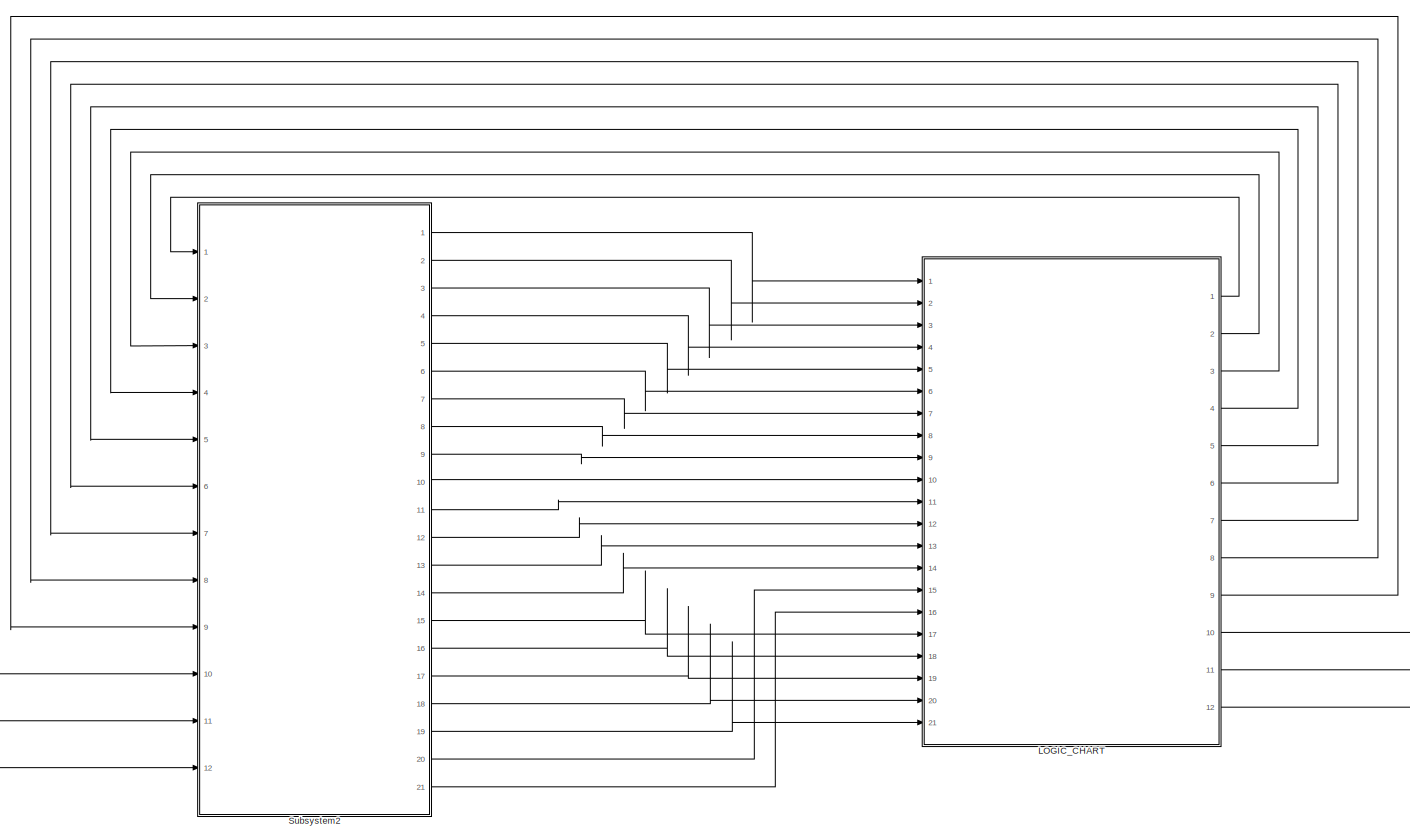
[diagram: root canvas - part 1/1, most of the canvas]
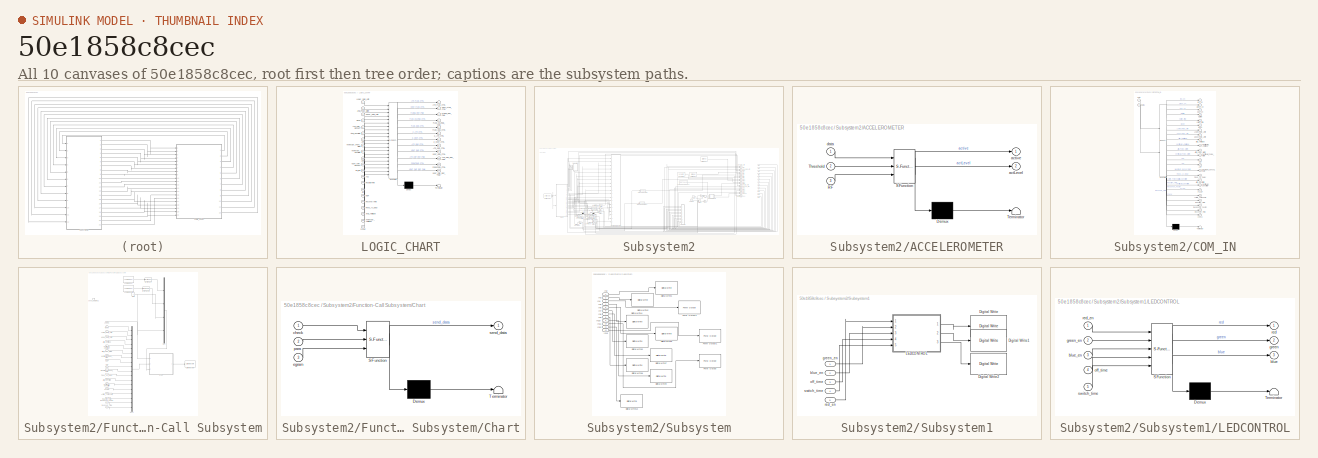
[diagram: thumbnail index - all 10 canvases of the model, root first then tree order]
MODEL slx_50e1858c8cec
KIND model
CONFIG AbsTol = auto
CONFIG EnableMultiTasking = on
CONFIG FixedStep = 1E-3
CONFIG MaxStep = auto
CONFIG MinStep = auto
CONFIG RelTol = 1e-3
CONFIG SampleTimeConstraint = Unconstrained
CONFIG Solver = FixedStepAuto
CONFIG SolverName = FixedStepAuto
CONFIG StartTime = 0.0
CONFIG StopTime = 1.0
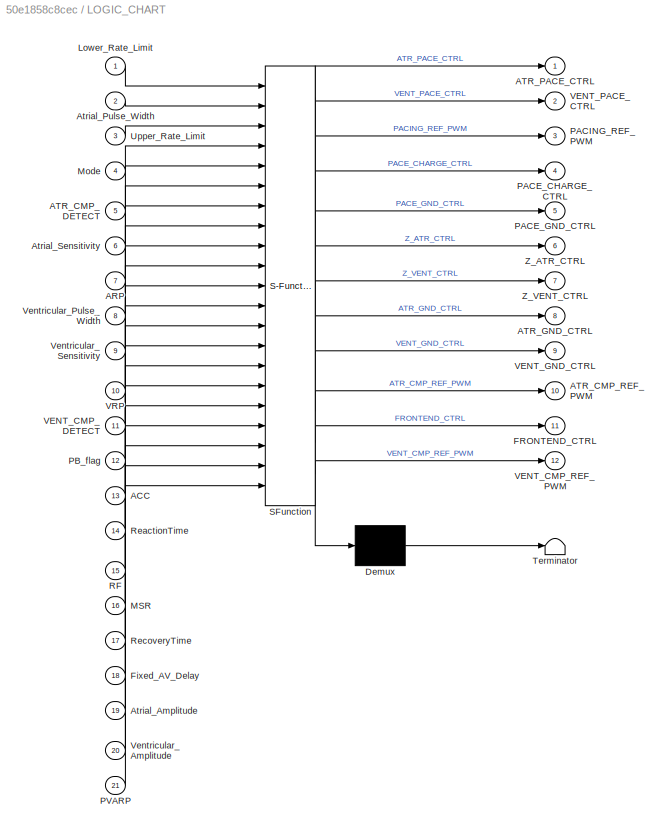
BLOCK [SubSystem] LOGIC_CHART
  ErrorFcn = Stateflow.Translate.translate
  PermitHierarchicalResolution = ExplicitOnly
  PortSchema = {"entries":[{"content":{"sides":[{"content":{"connectorIds":["In1","In2","In3","In4","In5","In6","In7","In8","In9","In10","In11","In12","In13","In14","In17","In18","In19","In20","In21","In15","In16"]},"type":"ConnectorPlacement.EquallySpacedRectSide","uuid":"2532a15d-7e3f-497c-8f71-038aa275bfb3"},{"content":{"connectorIds":["Out1","Out2","Out3","Out4","Out5","Out6","Out7","Out8","Out9","Out10","Ou...<+454ch>
  Ports = [21, 12]
  RequestExecContextInheritance = off
  SFBlockType = Chart
  TreatAsAtomicUnit = on
BLOCK [Demux] LOGIC_CHART/ Demux 
  Outputs = 1
  Ports = [1, 1]
BLOCK [S-Function] LOGIC_CHART/ SFunction 
  EnableBusSupport = on
  FunctionName = sf_sfun
  PortCounts = [21 13]
  Ports = [21, 13]
  SFcnIsStateOwnerBlock = off
  SFunctionDeploymentMode = off
  Tag = Stateflow S-Function 3
BLOCK [Terminator] LOGIC_CHART/ Terminator 
BLOCK [Inport] LOGIC_CHART/ACC
  Port = 13
BLOCK [Inport] LOGIC_CHART/ARP
  Port = 7
BLOCK [Inport] LOGIC_CHART/ATR_CMP_DETECT
  Port = 5
BLOCK [Outport] LOGIC_CHART/ATR_CMP_REF_PWM
  Port = 10
BLOCK [Outport] LOGIC_CHART/ATR_GND_CTRL
  Port = 8
BLOCK [Outport] LOGIC_CHART/ATR_PACE_CTRL
BLOCK [Inport] LOGIC_CHART/Atrial_Amplitude
  Port = 19
BLOCK [Inport] LOGIC_CHART/Atrial_Pulse_Width
  Port = 2
BLOCK [Inport] LOGIC_CHART/Atrial_Sensitivity
  Port = 6
BLOCK [Outport] LOGIC_CHART/FRONTEND_CTRL
  Port = 11
BLOCK [Inport] LOGIC_CHART/Fixed_AV_Delay
  Port = 18
BLOCK [Inport] LOGIC_CHART/Lower_Rate_Limit
BLOCK [Inport] LOGIC_CHART/MSR
  Port = 16
BLOCK [Inport] LOGIC_CHART/Mode
  Port = 4
BLOCK [Outport] LOGIC_CHART/PACE_CHARGE_CTRL
  Port = 4
BLOCK [Outport] LOGIC_CHART/PACE_GND_CTRL
  Port = 5
BLOCK [Outport] LOGIC_CHART/PACING_REF_PWM
  Port = 3
BLOCK [Inport] LOGIC_CHART/PB_flag
  Port = 12
BLOCK [Inport] LOGIC_CHART/PVARP
  Port = 21
BLOCK [Inport] LOGIC_CHART/RF
  Port = 15
BLOCK [Inport] LOGIC_CHART/ReactionTime
  Port = 14
BLOCK [Inport] LOGIC_CHART/RecoveryTime
  Port = 17
BLOCK [Inport] LOGIC_CHART/Upper_Rate_Limit
  Port = 3
BLOCK [Inport] LOGIC_CHART/VENT_CMP_DETECT
  Port = 11
BLOCK [Outport] LOGIC_CHART/VENT_CMP_REF_PWM
  Port = 12
BLOCK [Outport] LOGIC_CHART/VENT_GND_CTRL
  Port = 9
BLOCK [Outport] LOGIC_CHART/VENT_PACE_CTRL
  Port = 2
BLOCK [Inport] LOGIC_CHART/VRP
  Port = 10
BLOCK [Inport] LOGIC_CHART/Ventricular_Amplitude
  Port = 20
BLOCK [Inport] LOGIC_CHART/Ventricular_Pulse_Width
  Port = 8
BLOCK [Inport] LOGIC_CHART/Ventricular_Sensitivity
  Port = 9
BLOCK [Outport] LOGIC_CHART/Z_ATR_CTRL
  Port = 6
BLOCK [Outport] LOGIC_CHART/Z_VENT_CTRL
  Port = 7
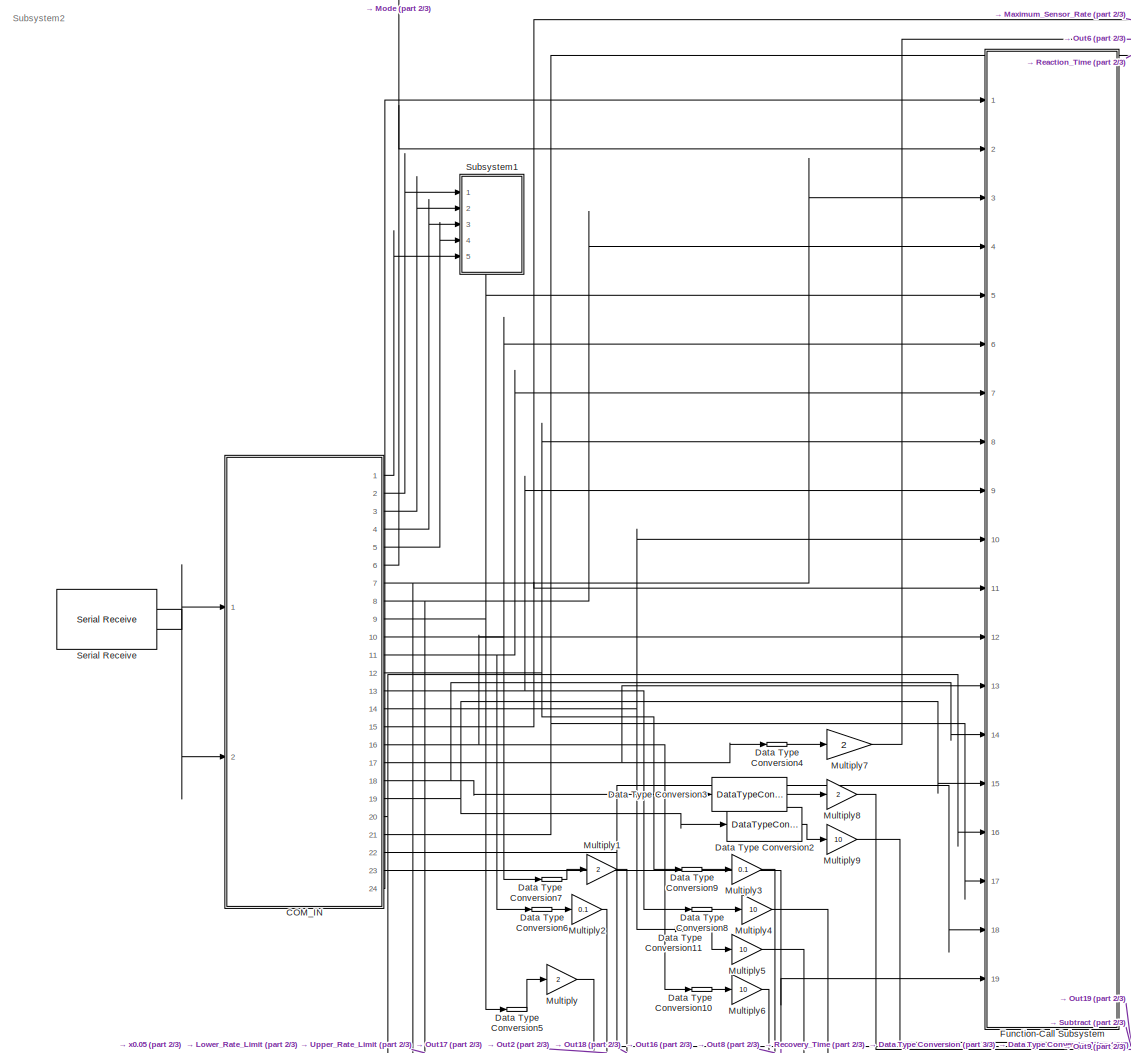
[diagram: Subsystem2 - part 1/3, left side, full height]
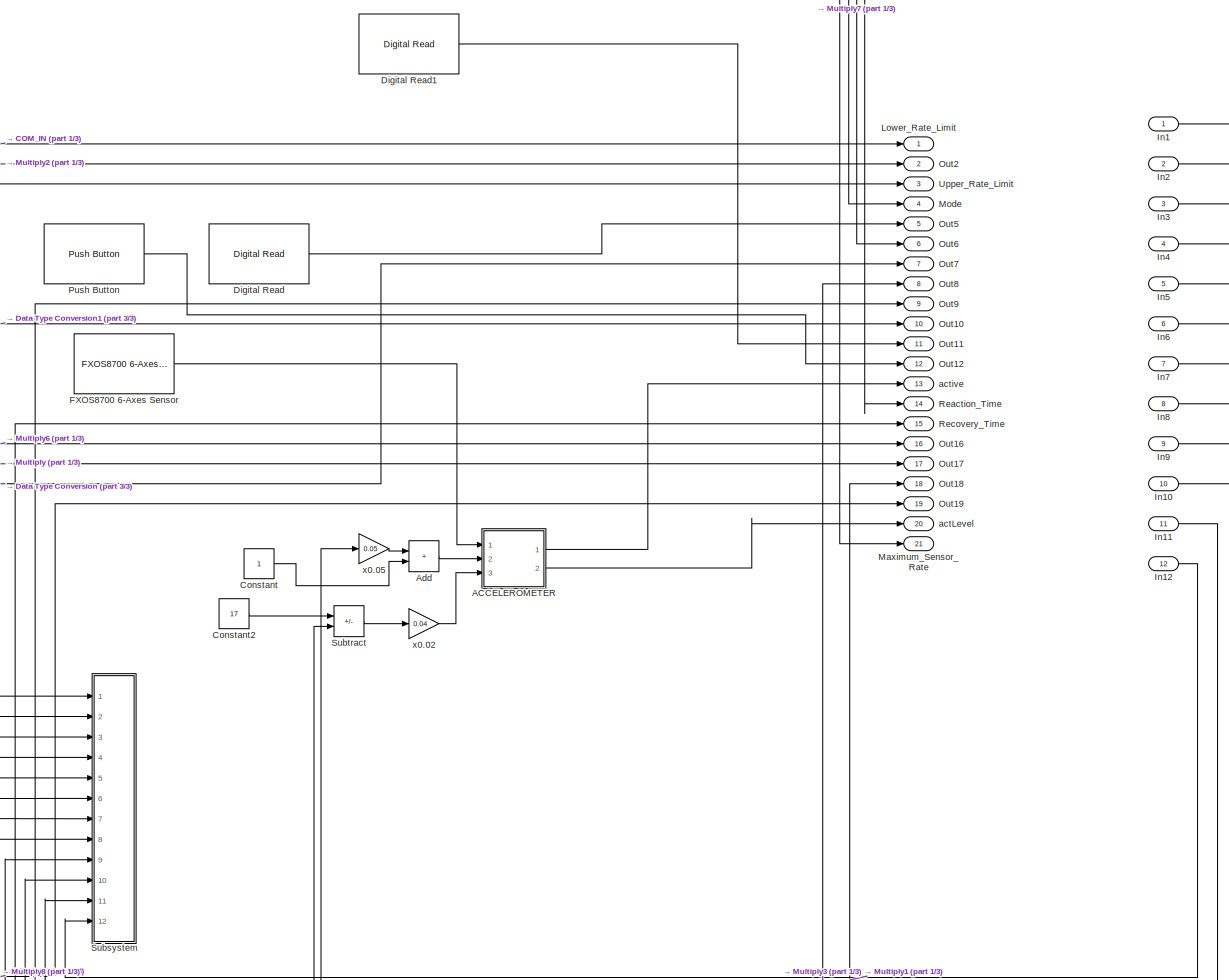
[diagram: Subsystem2 - part 2/3, right side, full height]
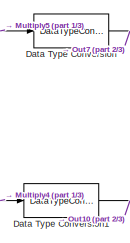
[diagram: Subsystem2 - part 3/3, central region]
BLOCK [SubSystem] Subsystem2
  Ports = [12, 21]
  RequestExecContextInheritance = off
BLOCK [SubSystem] Subsystem2/ACCELEROMETER
  ErrorFcn = Stateflow.Translate.translate
  PermitHierarchicalResolution = ExplicitOnly
  Ports = [3, 2]
  RequestExecContextInheritance = off
  SFBlockType = Chart
  TreatAsAtomicUnit = on
BLOCK [Demux] Subsystem2/ACCELEROMETER/ Demux 
  Outputs = 1
  Ports = [1, 1]
BLOCK [S-Function] Subsystem2/ACCELEROMETER/ SFunction 
  EnableBusSupport = on
  FunctionName = sf_sfun
  PortCounts = [3 3]
  Ports = [3, 3]
  SFcnIsStateOwnerBlock = off
  SFunctionDeploymentMode = off
  Tag = Stateflow S-Function 2
BLOCK [Terminator] Subsystem2/ACCELEROMETER/ Terminator 
BLOCK [Inport] Subsystem2/ACCELEROMETER/RF
  Port = 3
BLOCK [Inport] Subsystem2/ACCELEROMETER/Threshold
  Port = 2
BLOCK [Outport] Subsystem2/ACCELEROMETER/actLevel
  Port = 2
BLOCK [Outport] Subsystem2/ACCELEROMETER/active
BLOCK [Inport] Subsystem2/ACCELEROMETER/data
BLOCK [Sum] Subsystem2/Add
  IconShape = rectangular
  Ports = [2, 1]
BLOCK [SubSystem] Subsystem2/COM_IN
  ErrorFcn = Stateflow.Translate.translate
  PermitHierarchicalResolution = ExplicitOnly
  PortSchema = {"entries":[{"content":{"sides":[{"content":{"connectorIds":["In1","In2"]},"type":"ConnectorPlacement.EquallySpacedRectSide","uuid":"0622ed0d-a63c-4425-81a9-1b700e3d40e7"},{"content":{"connectorIds":["Out1","Out2","Out3","Out4","Out5","Out24","Out6","Out7","Out8","Out9","Out10","Out11","Out12","Out13","Out14","Out15","Out16","Out17","Out18","Out19","Out20","Out21","Out22","Out23"],"side":"RIGHT"},...<+424ch>
  Ports = [2, 24]
  RequestExecContextInheritance = off
  SFBlockType = Chart
  TreatAsAtomicUnit = on
BLOCK [Demux] Subsystem2/COM_IN/ Demux 
  Outputs = 1
  Ports = [1, 1]
BLOCK [S-Function] Subsystem2/COM_IN/ SFunction 
  EnableBusSupport = on
  FunctionName = sf_sfun
  PortCounts = [2 25]
  Ports = [2, 25]
  SFcnIsStateOwnerBlock = off
  SFunctionDeploymentMode = off
  Tag = Stateflow S-Function 1
BLOCK [Terminator] Subsystem2/COM_IN/ Terminator 
BLOCK [Outport] Subsystem2/COM_IN/ARP
  Port = 14
BLOCK [Outport] Subsystem2/COM_IN/Activity_Threshold
  Port = 20
BLOCK [Outport] Subsystem2/COM_IN/Atrial_Amplitude
  Port = 9
BLOCK [Outport] Subsystem2/COM_IN/Atrial_Pulse_Width
  Port = 11
BLOCK [Outport] Subsystem2/COM_IN/Atrial_Sensitivity
  Port = 17
BLOCK [Outport] Subsystem2/COM_IN/Fixed_AV_Delay
  Port = 16
BLOCK [Outport] Subsystem2/COM_IN/Lower_Rate_Limit
  Port = 7
BLOCK [Outport] Subsystem2/COM_IN/Maximum_Sensor_Rate
  Port = 15
BLOCK [Outport] Subsystem2/COM_IN/Mode
  Port = 6
BLOCK [Outport] Subsystem2/COM_IN/PVARP
  Port = 19
BLOCK [Outport] Subsystem2/COM_IN/Reaction_Time
  Port = 21
BLOCK [Outport] Subsystem2/COM_IN/Recovery_Time
  Port = 23
BLOCK [Outport] Subsystem2/COM_IN/Response_Factor
  Port = 22
BLOCK [Outport] Subsystem2/COM_IN/Upper_Rate_Limit
  Port = 8
BLOCK [Outport] Subsystem2/COM_IN/VRP
  Port = 13
BLOCK [Outport] Subsystem2/COM_IN/Ventricular_Amplitude
  Port = 10
BLOCK [Outport] Subsystem2/COM_IN/Ventricular_Pulse_Width
  Port = 12
BLOCK [Outport] Subsystem2/COM_IN/Ventricular_Sensitivity
  Port = 18
BLOCK [Outport] Subsystem2/COM_IN/blue_en
  Port = 3
BLOCK [Outport] Subsystem2/COM_IN/check
  Port = 24
BLOCK [Inport] Subsystem2/COM_IN/data
BLOCK [Inport] Subsystem2/COM_IN/data1
  Port = 2
BLOCK [Outport] Subsystem2/COM_IN/green_en
  Port = 2
BLOCK [Outport] Subsystem2/COM_IN/off_time
  Port = 4
BLOCK [Outport] Subsystem2/COM_IN/red_en
BLOCK [Outport] Subsystem2/COM_IN/switch_time
  Port = 5
BLOCK [Constant] Subsystem2/Constant
BLOCK [Constant] Subsystem2/Constant2
  Value = 17
BLOCK [DataTypeConversion] Subsystem2/Data Type Conversion
  OutDataTypeStr = double
  RndMeth = Floor
  SaturateOnIntegerOverflow = off
BLOCK [DataTypeConversion] Subsystem2/Data Type Conversion1
  OutDataTypeStr = double
  RndMeth = Floor
  SaturateOnIntegerOverflow = off
BLOCK [DataTypeConversion] Subsystem2/Data Type Conversion10
  OutDataTypeStr = double
  RndMeth = Floor
  SaturateOnIntegerOverflow = off
BLOCK [DataTypeConversion] Subsystem2/Data Type Conversion11
  OutDataTypeStr = double
  RndMeth = Floor
  SaturateOnIntegerOverflow = off
BLOCK [DataTypeConversion] Subsystem2/Data Type Conversion2
  OutDataTypeStr = double
  RndMeth = Floor
  SaturateOnIntegerOverflow = off
BLOCK [DataTypeConversion] Subsystem2/Data Type Conversion3
  OutDataTypeStr = double
  RndMeth = Floor
  SaturateOnIntegerOverflow = off
BLOCK [DataTypeConversion] Subsystem2/Data Type Conversion4
  OutDataTypeStr = double
  RndMeth = Floor
  SaturateOnIntegerOverflow = off
BLOCK [DataTypeConversion] Subsystem2/Data Type Conversion5
  OutDataTypeStr = double
  RndMeth = Floor
  SaturateOnIntegerOverflow = off
BLOCK [DataTypeConversion] Subsystem2/Data Type Conversion6
  OutDataTypeStr = double
  RndMeth = Floor
  SaturateOnIntegerOverflow = off
BLOCK [DataTypeConversion] Subsystem2/Data Type Conversion7
  OutDataTypeStr = double
  RndMeth = Floor
  SaturateOnIntegerOverflow = off
BLOCK [DataTypeConversion] Subsystem2/Data Type Conversion8
  OutDataTypeStr = double
  RndMeth = Floor
  SaturateOnIntegerOverflow = off
BLOCK [DataTypeConversion] Subsystem2/Data Type Conversion9
  OutDataTypeStr = double
  RndMeth = Floor
  SaturateOnIntegerOverflow = off
BLOCK [Reference] Subsystem2/Digital Read  REF=frdmk64flib/Digital Read
  Ports = [0, 1]
  SourceBlock = frdmk64flib/Digital Read
  SourceProductBaseCode = EC_FRDM_K64F
  SourceType = freedomk64f.DigitalRead
BLOCK [Reference] Subsystem2/Digital Read1  REF=frdmk64flib/Digital Read
  Ports = [0, 1]
  SourceBlock = frdmk64flib/Digital Read
  SourceProductBaseCode = EC_FRDM_K64F
  SourceType = freedomk64f.DigitalRead
BLOCK [Reference] Subsystem2/FXOS8700 6-Axes Sensor  REF=frdmk64flib/FXOS8700 6-Axes Sensor
  Ports = [0, 1]
  SourceBlock = frdmk64flib/FXOS8700 6-Axes Sensor
  SourceProductBaseCode = EC_FRDM_K64F
  SourceType = freedomk64f.fxos8700
BLOCK [SubSystem] Subsystem2/Function-Call Subsystem
  Ports = [19, 0, 0, 1]
  RequestExecContextInheritance = off
  TreatAsAtomicUnit = on
BLOCK [Inport] Subsystem2/Function-Call Subsystem/ARP
  Port = 10
BLOCK [Inport] Subsystem2/Function-Call Subsystem/Activity_Threshold
  Port = 16
BLOCK [Reference] Subsystem2/Function-Call Subsystem/Analog Input  REF=frdmk64flib/Analog Input
  Ports = [0, 1]
  SourceBlock = frdmk64flib/Analog Input
  SourceProductBaseCode = EC_FRDM_K64F
  SourceType = freedomk64f.AnalogInput
BLOCK [Reference] Subsystem2/Function-Call Subsystem/Analog Input1  REF=frdmk64flib/Analog Input
  Ports = [0, 1]
  SourceBlock = frdmk64flib/Analog Input
  SourceProductBaseCode = EC_FRDM_K64F
  SourceType = freedomk64f.AnalogInput
BLOCK [Inport] Subsystem2/Function-Call Subsystem/Atrial_Amplitude
  Port = 5
BLOCK [Inport] Subsystem2/Function-Call Subsystem/Atrial_Pulse_Width
  Port = 7
BLOCK [Inport] Subsystem2/Function-Call Subsystem/Atrial_Sensitivity
  Port = 13
BLOCK [Reference] Subsystem2/Function-Call Subsystem/Byte Pack  REF=etargetslib/Byte Pack
  Ports = [1, 1]
  SourceBlock = etargetslib/Byte Pack
  SourceProductBaseCode = ME
  SourceType = Byte pack
BLOCK [Reference] Subsystem2/Function-Call Subsystem/Byte Pack1  REF=etargetslib/Byte Pack
  Ports = [1, 1]
  SourceBlock = etargetslib/Byte Pack
  SourceProductBaseCode = ME
  SourceType = Byte pack
BLOCK [SubSystem] Subsystem2/Function-Call Subsystem/Chart
  ErrorFcn = Stateflow.Translate.translate
  PermitHierarchicalResolution = ExplicitOnly
  Ports = [3, 1]
  RequestExecContextInheritance = off
  SFBlockType = Chart
  TreatAsAtomicUnit = on
BLOCK [Demux] Subsystem2/Function-Call Subsystem/Chart/ Demux 
  Outputs = 1
  Ports = [1, 1]
BLOCK [S-Function] Subsystem2/Function-Call Subsystem/Chart/ SFunction 
  EnableBusSupport = on
  FunctionName = sf_sfun
  PortCounts = [3 2]
  Ports = [3, 2]
  SFcnIsStateOwnerBlock = off
  SFunctionDeploymentMode = off
  Tag = Stateflow S-Function 4
BLOCK [Terminator] Subsystem2/Function-Call Subsystem/Chart/ Terminator 
BLOCK [Inport] Subsystem2/Function-Call Subsystem/Chart/check
BLOCK [Inport] Subsystem2/Function-Call Subsystem/Chart/egram
  Port = 3
BLOCK [Inport] Subsystem2/Function-Call Subsystem/Chart/para
  Port = 2
BLOCK [Outport] Subsystem2/Function-Call Subsystem/Chart/send_data
BLOCK [Inport] Subsystem2/Function-Call Subsystem/Fixed_AV_Delay
  Port = 12
BLOCK [Inport] Subsystem2/Function-Call Subsystem/Lower_Rate_Limit
  Port = 3
BLOCK [Inport] Subsystem2/Function-Call Subsystem/Maximum_Sensor_Rate
  Port = 11
BLOCK [Inport] Subsystem2/Function-Call Subsystem/Mode
  Port = 2
BLOCK [Mux] Subsystem2/Function-Call Subsystem/Mux
  DisplayOption = bar
  Ports = [4, 1]
BLOCK [Mux] Subsystem2/Function-Call Subsystem/Mux1
  DisplayOption = bar
  Inputs = 18
  Ports = [18, 1]
BLOCK [Inport] Subsystem2/Function-Call Subsystem/PVARP
  Port = 15
BLOCK [Inport] Subsystem2/Function-Call Subsystem/Reaction_Time
  Port = 17
BLOCK [Inport] Subsystem2/Function-Call Subsystem/Recovery_Time
  Port = 19
BLOCK [Inport] Subsystem2/Function-Call Subsystem/Response_Factor
  Port = 18
BLOCK [Reference] Subsystem2/Function-Call Subsystem/Serial Transmit  REF=frdmk64flib/Serial Transmit
  Ports = [1]
  SourceBlock = frdmk64flib/Serial Transmit
  SourceProductBaseCode = EC_FRDM_K64F
  SourceType = freedomk64f.SCIWrite
BLOCK [Inport] Subsystem2/Function-Call Subsystem/Upper_Rate_Limit
  Port = 4
BLOCK [Inport] Subsystem2/Function-Call Subsystem/VRP
  Port = 9
BLOCK [Inport] Subsystem2/Function-Call Subsystem/Ventricular_Amplitude
  Port = 6
BLOCK [Inport] Subsystem2/Function-Call Subsystem/Ventricular_Pulse_Width
  Port = 8
BLOCK [Inport] Subsystem2/Function-Call Subsystem/Ventricular_Sensitivity
  Port = 14
BLOCK [Inport] Subsystem2/Function-Call Subsystem/check
BLOCK [TriggerPort] Subsystem2/Function-Call Subsystem/send_params2
  FunctionName = send_params2
  IsSimulinkFunction = on
  Ports = []
  StatesWhenEnabling = held
  TriggerType = function-call
  VariantControl = Variant
BLOCK [Constant] Subsystem2/Function-Call Subsystem/uint8
  OutDataTypeStr = uint8
BLOCK [Inport] Subsystem2/In1
BLOCK [Inport] Subsystem2/In10
  Port = 10
BLOCK [Inport] Subsystem2/In11
  Port = 11
BLOCK [Inport] Subsystem2/In12
  Port = 12
BLOCK [Inport] Subsystem2/In2
  Port = 2
BLOCK [Inport] Subsystem2/In3
  Port = 3
BLOCK [Inport] Subsystem2/In4
  Port = 4
BLOCK [Inport] Subsystem2/In5
  Port = 5
BLOCK [Inport] Subsystem2/In6
  Port = 6
BLOCK [Inport] Subsystem2/In7
  Port = 7
BLOCK [Inport] Subsystem2/In8
  Port = 8
BLOCK [Inport] Subsystem2/In9
  Port = 9
BLOCK [Outport] Subsystem2/Lower_Rate_Limit
BLOCK [Outport] Subsystem2/Maximum_Sensor_Rate
  Port = 21
BLOCK [Outport] Subsystem2/Mode
  Port = 4
BLOCK [Gain] Subsystem2/Multiply
  Gain = 2
BLOCK [Gain] Subsystem2/Multiply1
  Gain = 2
BLOCK [Gain] Subsystem2/Multiply2
  Gain = 0.1
BLOCK [Gain] Subsystem2/Multiply3
  Gain = 0.1
BLOCK [Gain] Subsystem2/Multiply4
  Gain = 10
BLOCK [Gain] Subsystem2/Multiply5
  Gain = 10
BLOCK [Gain] Subsystem2/Multiply6
  Gain = 10
BLOCK [Gain] Subsystem2/Multiply7
  Gain = 2
BLOCK [Gain] Subsystem2/Multiply8
  Gain = 2
BLOCK [Gain] Subsystem2/Multiply9
  Gain = 10
BLOCK [Outport] Subsystem2/Out10
  Port = 10
BLOCK [Outport] Subsystem2/Out11
  Port = 11
BLOCK [Outport] Subsystem2/Out12
  Port = 12
BLOCK [Outport] Subsystem2/Out16
  Port = 16
BLOCK [Outport] Subsystem2/Out17
  Port = 17
BLOCK [Outport] Subsystem2/Out18
  Port = 18
BLOCK [Outport] Subsystem2/Out19
  Port = 19
BLOCK [Outport] Subsystem2/Out2
  Port = 2
BLOCK [Outport] Subsystem2/Out5
  Port = 5
BLOCK [Outport] Subsystem2/Out6
  Port = 6
BLOCK [Outport] Subsystem2/Out7
  Port = 7
BLOCK [Outport] Subsystem2/Out8
  Port = 8
BLOCK [Outport] Subsystem2/Out9
  Port = 9
BLOCK [Reference] Subsystem2/Push Button  REF=frdmk64flib/Push Button
  Ports = [0, 1]
  SourceBlock = frdmk64flib/Push Button
  SourceProductBaseCode = EC_FRDM_K64F
  SourceType = freedomk64f.PushButton
BLOCK [Outport] Subsystem2/Reaction_Time
  Port = 14
BLOCK [Outport] Subsystem2/Recovery_Time
  Port = 15
BLOCK [Reference] Subsystem2/Serial Receive  REF=frdmk64flib/Serial Receive
  Ports = [0, 2]
  SourceBlock = frdmk64flib/Serial Receive
  SourceProductBaseCode = EC_FRDM_K64F
  SourceType = freedomk64f.SCIRead
BLOCK [SubSystem] Subsystem2/Subsystem
  Ports = [12]
  RequestExecContextInheritance = off
BLOCK [Reference] Subsystem2/Subsystem/Digital Write1  REF=frdmk64flib/Digital Write
  Ports = [1]
  SourceBlock = frdmk64flib/Digital Write
  SourceProductBaseCode = EC_FRDM_K64F
  SourceType = freedomk64f.DigitalWrite
BLOCK [Reference] Subsystem2/Subsystem/Digital Write13  REF=frdmk64flib/Digital Write
  Ports = [1]
  SourceBlock = frdmk64flib/Digital Write
  SourceProductBaseCode = EC_FRDM_K64F
  SourceType = freedomk64f.DigitalWrite
BLOCK [Reference] Subsystem2/Subsystem/Digital Write2  REF=frdmk64flib/Digital Write
  Ports = [1]
  SourceBlock = frdmk64flib/Digital Write
  SourceProductBaseCode = EC_FRDM_K64F
  SourceType = freedomk64f.DigitalWrite
BLOCK [Reference] Subsystem2/Subsystem/Digital Write4  REF=frdmk64flib/Digital Write
  Ports = [1]
  SourceBlock = frdmk64flib/Digital Write
  SourceProductBaseCode = EC_FRDM_K64F
  SourceType = freedomk64f.DigitalWrite
BLOCK [Reference] Subsystem2/Subsystem/Digital Write5  REF=frdmk64flib/Digital Write
  Ports = [1]
  SourceBlock = frdmk64flib/Digital Write
  SourceProductBaseCode = EC_FRDM_K64F
  SourceType = freedomk64f.DigitalWrite
BLOCK [Reference] Subsystem2/Subsystem/Digital Write6  REF=frdmk64flib/Digital Write
  Ports = [1]
  SourceBlock = frdmk64flib/Digital Write
  SourceProductBaseCode = EC_FRDM_K64F
  SourceType = freedomk64f.DigitalWrite
BLOCK [Reference] Subsystem2/Subsystem/Digital Write7  REF=frdmk64flib/Digital Write
  Ports = [1]
  SourceBlock = frdmk64flib/Digital Write
  SourceProductBaseCode = EC_FRDM_K64F
  SourceType = freedomk64f.DigitalWrite
BLOCK [Reference] Subsystem2/Subsystem/Digital Write8  REF=frdmk64flib/Digital Write
  Ports = [1]
  SourceBlock = frdmk64flib/Digital Write
  SourceProductBaseCode = EC_FRDM_K64F
  SourceType = freedomk64f.DigitalWrite
BLOCK [Reference] Subsystem2/Subsystem/Digital Write9  REF=frdmk64flib/Digital Write
  Ports = [1]
  SourceBlock = frdmk64flib/Digital Write
  SourceProductBaseCode = EC_FRDM_K64F
  SourceType = freedomk64f.DigitalWrite
BLOCK [Inport] Subsystem2/Subsystem/In10
  Port = 9
BLOCK [Inport] Subsystem2/Subsystem/In11
  Port = 10
BLOCK [Inport] Subsystem2/Subsystem/In12
  Port = 11
BLOCK [Inport] Subsystem2/Subsystem/In13
  Port = 12
BLOCK [Inport] Subsystem2/Subsystem/In2
BLOCK [Inport] Subsystem2/Subsystem/In3
  Port = 2
BLOCK [Inport] Subsystem2/Subsystem/In4
  Port = 3
BLOCK [Inport] Subsystem2/Subsystem/In5
  Port = 4
BLOCK [Inport] Subsystem2/Subsystem/In6
  Port = 5
BLOCK [Inport] Subsystem2/Subsystem/In7
  Port = 6
BLOCK [Inport] Subsystem2/Subsystem/In8
  Port = 7
BLOCK [Inport] Subsystem2/Subsystem/In9
  Port = 8
BLOCK [Reference] Subsystem2/Subsystem/PWM Output  REF=frdmk64flib/PWM Output
  Ports = [1]
  SourceBlock = frdmk64flib/PWM Output
  SourceProductBaseCode = EC_FRDM_K64F
  SourceType = freedomk64f.PWMOutput
BLOCK [Reference] Subsystem2/Subsystem/PWM Output1  REF=frdmk64flib/PWM Output
  Ports = [1]
  SourceBlock = frdmk64flib/PWM Output
  SourceProductBaseCode = EC_FRDM_K64F
  SourceType = freedomk64f.PWMOutput
BLOCK [Reference] Subsystem2/Subsystem/PWM Output2  REF=frdmk64flib/PWM Output
  Ports = [1]
  SourceBlock = frdmk64flib/PWM Output
  SourceProductBaseCode = EC_FRDM_K64F
  SourceType = freedomk64f.PWMOutput
BLOCK [SubSystem] Subsystem2/Subsystem1
  Ports = [5]
  RequestExecContextInheritance = off
BLOCK [Reference] Subsystem2/Subsystem1/Digital Write  REF=frdmk64flib/Digital Write
  Ports = [1]
  SourceBlock = frdmk64flib/Digital Write
  SourceProductBaseCode = EC_FRDM_K64F
  SourceType = freedomk64f.DigitalWrite
BLOCK [Reference] Subsystem2/Subsystem1/Digital Write1  REF=frdmk64flib/Digital Write
  Ports = [1]
  SourceBlock = frdmk64flib/Digital Write
  SourceProductBaseCode = EC_FRDM_K64F
  SourceType = freedomk64f.DigitalWrite
BLOCK [Reference] Subsystem2/Subsystem1/Digital Write2  REF=frdmk64flib/Digital Write
  Ports = [1]
  SourceBlock = frdmk64flib/Digital Write
  SourceProductBaseCode = EC_FRDM_K64F
  SourceType = freedomk64f.DigitalWrite
BLOCK [SubSystem] Subsystem2/Subsystem1/LEDCONTROL
  ErrorFcn = Stateflow.Translate.translate
  PermitHierarchicalResolution = ExplicitOnly
  Ports = [5, 3]
  RequestExecContextInheritance = off
  SFBlockType = Chart
  TreatAsAtomicUnit = on
BLOCK [Demux] Subsystem2/Subsystem1/LEDCONTROL/ Demux 
  Outputs = 1
  Ports = [1, 1]
BLOCK [S-Function] Subsystem2/Subsystem1/LEDCONTROL/ SFunction 
  EnableBusSupport = on
  FunctionName = sf_sfun
  PortCounts = [5 4]
  Ports = [5, 4]
  SFcnIsStateOwnerBlock = off
  SFunctionDeploymentMode = off
  Tag = Stateflow S-Function 5
BLOCK [Terminator] Subsystem2/Subsystem1/LEDCONTROL/ Terminator 
BLOCK [Outport] Subsystem2/Subsystem1/LEDCONTROL/blue
  Port = 3
BLOCK [Inport] Subsystem2/Subsystem1/LEDCONTROL/blue_en
  Port = 3
BLOCK [Outport] Subsystem2/Subsystem1/LEDCONTROL/green
  Port = 2
BLOCK [Inport] Subsystem2/Subsystem1/LEDCONTROL/green_en
  Port = 2
BLOCK [Inport] Subsystem2/Subsystem1/LEDCONTROL/off_time
  Port = 4
BLOCK [Outport] Subsystem2/Subsystem1/LEDCONTROL/red
BLOCK [Inport] Subsystem2/Subsystem1/LEDCONTROL/red_en
BLOCK [Inport] Subsystem2/Subsystem1/LEDCONTROL/switch_time
  Port = 5
BLOCK [Inport] Subsystem2/Subsystem1/blue_en
  Port = 2
BLOCK [Inport] Subsystem2/Subsystem1/green_en
BLOCK [Inport] Subsystem2/Subsystem1/off_time
  Port = 3
BLOCK [Inport] Subsystem2/Subsystem1/red_en
  Port = 5
BLOCK [Inport] Subsystem2/Subsystem1/switch_time
  Port = 4
BLOCK [Sum] Subsystem2/Subtract
  IconShape = rectangular
  Inputs = +-
  Ports = [2, 1]
BLOCK [Outport] Subsystem2/Upper_Rate_Limit
  Port = 3
BLOCK [Outport] Subsystem2/actLevel
  Port = 20
BLOCK [Outport] Subsystem2/active
  Port = 13
BLOCK [Gain] Subsystem2/x0.02
  Gain = 0.04
BLOCK [Gain] Subsystem2/x0.05
  Gain = 0.05
ANNOTATION Subsystem2: Subsystem2
LINE LOGIC_CHART:1 -> Subsystem2:1
LINE LOGIC_CHART:10 -> Subsystem2:10
LINE LOGIC_CHART:11 -> Subsystem2:11
LINE LOGIC_CHART:12 -> Subsystem2:12
LINE LOGIC_CHART:2 -> Subsystem2:2
LINE LOGIC_CHART:3 -> Subsystem2:3
LINE LOGIC_CHART:4 -> Subsystem2:4
LINE LOGIC_CHART:5 -> Subsystem2:5
LINE LOGIC_CHART:6 -> Subsystem2:6
LINE LOGIC_CHART:7 -> Subsystem2:7
LINE LOGIC_CHART:8 -> Subsystem2:8
LINE LOGIC_CHART:9 -> Subsystem2:9
LINE Subsystem2/ACCELEROMETER:1 -> Subsystem2/active:1
LINE Subsystem2/ACCELEROMETER:2 -> Subsystem2/actLevel:1
LINE Subsystem2/Add:1 -> Subsystem2/ACCELEROMETER:2
LINE Subsystem2/COM_IN:1 -> Subsystem2/Subsystem1:5
NET Subsystem2/COM_IN:10 -> Subsystem2/Data Type Conversion7:1, Subsystem2/Function-Call Subsystem:6
NET Subsystem2/COM_IN:11 -> Subsystem2/Data Type Conversion6:1, Subsystem2/Function-Call Subsystem:7
NET Subsystem2/COM_IN:12 -> Subsystem2/Data Type Conversion9:1, Subsystem2/Function-Call Subsystem:8
NET Subsystem2/COM_IN:13 -> Subsystem2/Data Type Conversion8:1, Subsystem2/Function-Call Subsystem:9
NET Subsystem2/COM_IN:14 -> Subsystem2/Data Type Conversion11:1, Subsystem2/Function-Call Subsystem:10
NET Subsystem2/COM_IN:15 -> Subsystem2/Function-Call Subsystem:11, Subsystem2/Maximum_Sensor_Rate:1
NET Subsystem2/COM_IN:16 -> Subsystem2/Data Type Conversion10:1, Subsystem2/Function-Call Subsystem:12
NET Subsystem2/COM_IN:17 -> Subsystem2/Data Type Conversion4:1, Subsystem2/Function-Call Subsystem:13
NET Subsystem2/COM_IN:18 -> Subsystem2/Data Type Conversion3:1, Subsystem2/Function-Call Subsystem:14
NET Subsystem2/COM_IN:19 -> Subsystem2/Data Type Conversion2:1, Subsystem2/Function-Call Subsystem:15
LINE Subsystem2/COM_IN:2 -> Subsystem2/Subsystem1:1
NET Subsystem2/COM_IN:20 -> Subsystem2/Function-Call Subsystem:16, Subsystem2/x0.05:1
NET Subsystem2/COM_IN:21 -> Subsystem2/Function-Call Subsystem:17, Subsystem2/Reaction_Time:1
NET Subsystem2/COM_IN:22 -> Subsystem2/Function-Call Subsystem:18, Subsystem2/Subtract:2
NET Subsystem2/COM_IN:23 -> Subsystem2/Function-Call Subsystem:19, Subsystem2/Recovery_Time:1
LINE Subsystem2/COM_IN:24 -> Subsystem2/Function-Call Subsystem:1
LINE Subsystem2/COM_IN:3 -> Subsystem2/Subsystem1:2
LINE Subsystem2/COM_IN:4 -> Subsystem2/Subsystem1:3
LINE Subsystem2/COM_IN:5 -> Subsystem2/Subsystem1:4
NET Subsystem2/COM_IN:6 -> Subsystem2/Function-Call Subsystem:2, Subsystem2/Mode:1
NET Subsystem2/COM_IN:7 -> Subsystem2/Function-Call Subsystem:3, Subsystem2/Lower_Rate_Limit:1
NET Subsystem2/COM_IN:8 -> Subsystem2/Function-Call Subsystem:4, Subsystem2/Upper_Rate_Limit:1
NET Subsystem2/COM_IN:9 -> Subsystem2/Data Type Conversion5:1, Subsystem2/Function-Call Subsystem:5
LINE Subsystem2/Constant2:1 -> Subsystem2/Subtract:1
LINE Subsystem2/Constant:1 -> Subsystem2/Add:2
LINE Subsystem2/Data Type Conversion10:1 -> Subsystem2/Multiply6:1
LINE Subsystem2/Data Type Conversion11:1 -> Subsystem2/Multiply5:1
LINE Subsystem2/Data Type Conversion1:1 -> Subsystem2/Out10:1
LINE Subsystem2/Data Type Conversion2:1 -> Subsystem2/Multiply9:1
LINE Subsystem2/Data Type Conversion3:1 -> Subsystem2/Multiply8:1
LINE Subsystem2/Data Type Conversion4:1 -> Subsystem2/Multiply7:1
LINE Subsystem2/Data Type Conversion5:1 -> Subsystem2/Multiply:1
LINE Subsystem2/Data Type Conversion6:1 -> Subsystem2/Multiply2:1
LINE Subsystem2/Data Type Conversion7:1 -> Subsystem2/Multiply1:1
LINE Subsystem2/Data Type Conversion8:1 -> Subsystem2/Multiply4:1
LINE Subsystem2/Data Type Conversion9:1 -> Subsystem2/Multiply3:1
LINE Subsystem2/Data Type Conversion:1 -> Subsystem2/Out7:1
LINE Subsystem2/Digital Read1:1 -> Subsystem2/Out11:1
LINE Subsystem2/Digital Read:1 -> Subsystem2/Out5:1
LINE Subsystem2/FXOS8700 6-Axes Sensor:1 -> Subsystem2/ACCELEROMETER:1
LINE Subsystem2/Function-Call Subsystem/ARP:1 -> Subsystem2/Function-Call Subsystem/Mux1:9
LINE Subsystem2/Function-Call Subsystem/Activity_Threshold:1 -> Subsystem2/Function-Call Subsystem/Mux1:15
LINE Subsystem2/Function-Call Subsystem/Analog Input1:1 -> Subsystem2/Function-Call Subsystem/Byte Pack1:1
LINE Subsystem2/Function-Call Subsystem/Analog Input:1 -> Subsystem2/Function-Call Subsystem/Byte Pack:1
LINE Subsystem2/Function-Call Subsystem/Atrial_Amplitude:1 -> Subsystem2/Function-Call Subsystem/Mux1:4
LINE Subsystem2/Function-Call Subsystem/Atrial_Pulse_Width:1 -> Subsystem2/Function-Call Subsystem/Mux1:6
LINE Subsystem2/Function-Call Subsystem/Atrial_Sensitivity:1 -> Subsystem2/Function-Call Subsystem/Mux1:12
LINE Subsystem2/Function-Call Subsystem/Byte Pack1:1 -> Subsystem2/Function-Call Subsystem/Mux:2
LINE Subsystem2/Function-Call Subsystem/Byte Pack:1 -> Subsystem2/Function-Call Subsystem/Mux:1
LINE Subsystem2/Function-Call Subsystem/Chart:1 -> Subsystem2/Function-Call Subsystem/Serial Transmit:1
LINE Subsystem2/Function-Call Subsystem/Fixed_AV_Delay:1 -> Subsystem2/Function-Call Subsystem/Mux1:11
LINE Subsystem2/Function-Call Subsystem/Lower_Rate_Limit:1 -> Subsystem2/Function-Call Subsystem/Mux1:2
LINE Subsystem2/Function-Call Subsystem/Maximum_Sensor_Rate:1 -> Subsystem2/Function-Call Subsystem/Mux1:10
LINE Subsystem2/Function-Call Subsystem/Mode:1 -> Subsystem2/Function-Call Subsystem/Mux1:1
LINE Subsystem2/Function-Call Subsystem/Mux1:1 -> Subsystem2/Function-Call Subsystem/Chart:2
LINE Subsystem2/Function-Call Subsystem/Mux:1 -> Subsystem2/Function-Call Subsystem/Chart:3
LINE Subsystem2/Function-Call Subsystem/PVARP:1 -> Subsystem2/Function-Call Subsystem/Mux1:14
LINE Subsystem2/Function-Call Subsystem/Reaction_Time:1 -> Subsystem2/Function-Call Subsystem/Mux1:16
LINE Subsystem2/Function-Call Subsystem/Recovery_Time:1 -> Subsystem2/Function-Call Subsystem/Mux1:18
LINE Subsystem2/Function-Call Subsystem/Response_Factor:1 -> Subsystem2/Function-Call Subsystem/Mux1:17
LINE Subsystem2/Function-Call Subsystem/Upper_Rate_Limit:1 -> Subsystem2/Function-Call Subsystem/Mux1:3
LINE Subsystem2/Function-Call Subsystem/VRP:1 -> Subsystem2/Function-Call Subsystem/Mux1:8
LINE Subsystem2/Function-Call Subsystem/Ventricular_Amplitude:1 -> Subsystem2/Function-Call Subsystem/Mux1:5
LINE Subsystem2/Function-Call Subsystem/Ventricular_Pulse_Width:1 -> Subsystem2/Function-Call Subsystem/Mux1:7
LINE Subsystem2/Function-Call Subsystem/Ventricular_Sensitivity:1 -> Subsystem2/Function-Call Subsystem/Mux1:13
LINE Subsystem2/Function-Call Subsystem/check:1 -> Subsystem2/Function-Call Subsystem/Chart:1
NET Subsystem2/Function-Call Subsystem/uint8:1 -> Subsystem2/Function-Call Subsystem/Mux:3, Subsystem2/Function-Call Subsystem/Mux:4
LINE Subsystem2/In10:1 -> Subsystem2/Subsystem:10
LINE Subsystem2/In11:1 -> Subsystem2/Subsystem:11
LINE Subsystem2/In12:1 -> Subsystem2/Subsystem:12
LINE Subsystem2/In1:1 -> Subsystem2/Subsystem:1
LINE Subsystem2/In2:1 -> Subsystem2/Subsystem:2
LINE Subsystem2/In3:1 -> Subsystem2/Subsystem:3
LINE Subsystem2/In4:1 -> Subsystem2/Subsystem:4
LINE Subsystem2/In5:1 -> Subsystem2/Subsystem:5
LINE Subsystem2/In6:1 -> Subsystem2/Subsystem:6
LINE Subsystem2/In7:1 -> Subsystem2/Subsystem:7
LINE Subsystem2/In8:1 -> Subsystem2/Subsystem:8
LINE Subsystem2/In9:1 -> Subsystem2/Subsystem:9
LINE Subsystem2/Multiply1:1 -> Subsystem2/Out18:1
LINE Subsystem2/Multiply2:1 -> Subsystem2/Out2:1
LINE Subsystem2/Multiply3:1 -> Subsystem2/Out8:1
LINE Subsystem2/Multiply4:1 -> Subsystem2/Data Type Conversion1:1
LINE Subsystem2/Multiply5:1 -> Subsystem2/Data Type Conversion:1
LINE Subsystem2/Multiply6:1 -> Subsystem2/Out16:1
LINE Subsystem2/Multiply7:1 -> Subsystem2/Out6:1
LINE Subsystem2/Multiply8:1 -> Subsystem2/Out9:1
LINE Subsystem2/Multiply9:1 -> Subsystem2/Out19:1
LINE Subsystem2/Multiply:1 -> Subsystem2/Out17:1
LINE Subsystem2/Push Button:1 -> Subsystem2/Out12:1
LINE Subsystem2/Serial Receive:1 -> Subsystem2/COM_IN:2
LINE Subsystem2/Serial Receive:2 -> Subsystem2/COM_IN:1
LINE Subsystem2/Subsystem/In10:1 -> Subsystem2/Subsystem/Digital Write9:1
LINE Subsystem2/Subsystem/In11:1 -> Subsystem2/Subsystem/PWM Output:1
LINE Subsystem2/Subsystem/In12:1 -> Subsystem2/Subsystem/Digital Write13:1
LINE Subsystem2/Subsystem/In13:1 -> Subsystem2/Subsystem/PWM Output1:1
LINE Subsystem2/Subsystem/In2:1 -> Subsystem2/Subsystem/Digital Write1:1
LINE Subsystem2/Subsystem/In3:1 -> Subsystem2/Subsystem/Digital Write2:1
LINE Subsystem2/Subsystem/In4:1 -> Subsystem2/Subsystem/PWM Output2:1
LINE Subsystem2/Subsystem/In5:1 -> Subsystem2/Subsystem/Digital Write4:1
LINE Subsystem2/Subsystem/In6:1 -> Subsystem2/Subsystem/Digital Write6:1
LINE Subsystem2/Subsystem/In7:1 -> Subsystem2/Subsystem/Digital Write5:1
LINE Subsystem2/Subsystem/In8:1 -> Subsystem2/Subsystem/Digital Write7:1
LINE Subsystem2/Subsystem/In9:1 -> Subsystem2/Subsystem/Digital Write8:1
LINE Subsystem2/Subsystem1/LEDCONTROL:1 -> Subsystem2/Subsystem1/Digital Write:1
LINE Subsystem2/Subsystem1/LEDCONTROL:2 -> Subsystem2/Subsystem1/Digital Write1:1
LINE Subsystem2/Subsystem1/LEDCONTROL:3 -> Subsystem2/Subsystem1/Digital Write2:1
LINE Subsystem2/Subsystem1/blue_en:1 -> Subsystem2/Subsystem1/LEDCONTROL:3
LINE Subsystem2/Subsystem1/green_en:1 -> Subsystem2/Subsystem1/LEDCONTROL:2
LINE Subsystem2/Subsystem1/off_time:1 -> Subsystem2/Subsystem1/LEDCONTROL:4
LINE Subsystem2/Subsystem1/red_en:1 -> Subsystem2/Subsystem1/LEDCONTROL:1
LINE Subsystem2/Subsystem1/switch_time:1 -> Subsystem2/Subsystem1/LEDCONTROL:5
LINE Subsystem2/Subtract:1 -> Subsystem2/x0.02:1
LINE Subsystem2/x0.02:1 -> Subsystem2/ACCELEROMETER:3
LINE Subsystem2/x0.05:1 -> Subsystem2/Add:1
LINE Subsystem2:1 -> LOGIC_CHART:1
LINE Subsystem2:10 -> LOGIC_CHART:10
LINE Subsystem2:11 -> LOGIC_CHART:11
LINE Subsystem2:12 -> LOGIC_CHART:12
LINE Subsystem2:13 -> LOGIC_CHART:13
LINE Subsystem2:14 -> LOGIC_CHART:14
LINE Subsystem2:15 -> LOGIC_CHART:17
LINE Subsystem2:16 -> LOGIC_CHART:18
LINE Subsystem2:17 -> LOGIC_CHART:19
LINE Subsystem2:18 -> LOGIC_CHART:20
LINE Subsystem2:19 -> LOGIC_CHART:21
LINE Subsystem2:2 -> LOGIC_CHART:2
LINE Subsystem2:20 -> LOGIC_CHART:15
LINE Subsystem2:21 -> LOGIC_CHART:16
LINE Subsystem2:3 -> LOGIC_CHART:3
LINE Subsystem2:4 -> LOGIC_CHART:4
LINE Subsystem2:5 -> LOGIC_CHART:5
LINE Subsystem2:6 -> LOGIC_CHART:6
LINE Subsystem2:7 -> LOGIC_CHART:7
LINE Subsystem2:8 -> LOGIC_CHART:8
LINE Subsystem2:9 -> LOGIC_CHART:9
note: NET lines group one-source signal fan-out (src -> all destinations, sorted); 1:1 wires keep LINE
CHART Subsystem2/COM_IN states=5 transitions=11
  STATE_LABEL 'AOO\nentry:\nMode=data1(3);\nLower_Rate_Limit = data1(4);\nUpper_Rate_Limit = data1(5);\nAtrial_Amplitude = data1(6);\nVentricular_Amplitude =data1(7);\nAtrial_Pulse_Width = data1(8);\nVentricular_Pulse_Width = data1(9);\nVRP = data1(10);\nARP = data1(11);\nMaximum_Sensor_Rate = data1(12);\nFixed_AV_Delay = data1(13);\nAtrial_Sensitivity = data1(14);\nVentricular_Sensitivity =data1(15);\nPVARP = data1(16);\nActiv...<+142ch>'
  STATE_LABEL 'Idle\nentry:\nred_en=1;\ngreen_en=0;\nblue_en=0;\noff_time=0.5;\nswitch_time=200;'
  STATE_LABEL 'Standby\nentry:\nred_en=0;\nblue_en=1;\ngreen_en=0;\ncheck=0;\n'
  STATE_LABEL 'ECHO_PARAM\nentry:\ncheck=49;\nsend_params2();\nblue_en=0;\nred_en=1;'
  STATE_LABEL 'ECHO_EGRAM\nentry:\ncheck=47;\nsend_params2();\nblue_en=1;\ngreen_en=1;'
CHART Subsystem2/ACCELEROMETER states=3 transitions=5
  STATE_LABEL 'Enter\nentry:\nactive=0;\nactLevel=0;'
  STATE_LABEL 'Ini\nentry:\nTiming=0;\nacc=0;\n'
  STATE_LABEL 'H\nentry:\nacc=acc+norm(data);\n%update the motion level every 0.5s\nif(Timing==500)\n    acc=acc/100; %taking average of acc over 0.5s\n    if(acc>Threshold)\n        active=1;\n        if((acc-Threshold)>=RF)\n            actLevel=100; %MSR will be reached if actLevel=100\n        else\n            %actLevel is the proportion of acc above threshold, in percentage\n            actLevel=(acc-Threshold)/RF*100...<+99ch>'
CHART LOGIC_CHART states=20 transitions=41
  STATE_LABEL "VOO_CHARGING\nentry:\n%parameters for charging c22\nATR_PACE_CTRL= false;\nVENT_PACE_CTRL = false;\nPACING_REF_PWM = Ventricular_Amplitude;\nPACE_CHARGE_CTRL = true;\n%parameters for discharging into c11\nPACE_GND_CTRL = true;\nVENT_PACE_CTRL = false;\nZ_ATR_CTRL = false;\nZ_VENT_CTRL = false;\nATR_PACE_CTRL= false;\nATR_GND_CTRL = false;\nVENT_GND_CTRL = true;\nif(Mode==9) %if it's rate adaptive\n    if(ACC==1) ...<+943ch>"
  STATE_LABEL 'DELAY_STATE3\n%delay for bonus'
  STATE_LABEL 'VOO_PACING\nentry:\nPACE_CHARGE_CTRL = false;\nPACE_GND_CTRL = true;\nATR_PACE_CTRL= false;\nATR_GND_CTRL = false;\nZ_ATR_CTRL = false;\nZ_VENT_CTRL = false;\nVENT_GND_CTRL = false;\nVENT_PACE_CTRL = true;'
  STATE_LABEL 'DELAY_STATE\n%delay for bonus'
  STATE_LABEL "AOO_CHARGING\nentry:\n%parameters for charging c22\nATR_PACE_CTRL= false;\nVENT_PACE_CTRL = false;\nPACING_REF_PWM =  Atrial_Amplitude;\nPACE_CHARGE_CTRL = true;\n%parameters for discharging into c11\nPACE_GND_CTRL = true;\nVENT_PACE_CTRL = false;\nZ_ATR_CTRL = false;\nZ_VENT_CTRL = false;\nATR_PACE_CTRL= false;\nATR_GND_CTRL = true;\nVENT_GND_CTRL = false;\nif(Mode==7) %if it's rate adaptive\n    %for detailed c...<+488ch>"
  STATE_LABEL 'AOO_PACING\nentry:\nPACE_CHARGE_CTRL = false;\nPACE_GND_CTRL = true;\nATR_PACE_CTRL= true;\nATR_GND_CTRL = false;\nZ_ATR_CTRL = false;\nZ_VENT_CTRL = false;\nVENT_GND_CTRL = false;\nVENT_PACE_CTRL = false;'
  STATE_LABEL "Initial\nentry:\ndelay=0;\nRate=Lower_Rate_Limit;\n%delay is used in AAI(R)&VVI(R)\n%to correct for delay caused\n%by ARP and VRP\n%Rate is fixed to LRL if it's not in rate adaptive\n%modes, and it's changeable\n%if used in rate adaptive modes"
  STATE_LABEL 'AAI_CHARGING\nentry:\n%parameters for charging c22\nATR_PACE_CTRL= false;\nVENT_PACE_CTRL = false;\nPACING_REF_PWM =  Atrial_Amplitude;\nPACE_CHARGE_CTRL = true;\n%parameters for discharging into c11\nPACE_GND_CTRL = true;\nVENT_PACE_CTRL = false;\nZ_ATR_CTRL = false;\nZ_VENT_CTRL = false;\nATR_PACE_CTRL= false;\nATR_GND_CTRL = true;\nVENT_GND_CTRL = false;\n%parameters for sensing\nATR_CMP_REF_PWM=Atrial_Sensiti...<+630ch>'
  STATE_LABEL 'AAI_PACING\nentry:\nPACE_CHARGE_CTRL = false;\nPACE_GND_CTRL = true;\nATR_PACE_CTRL= true;\nATR_GND_CTRL = false;\nZ_ATR_CTRL = false;\nZ_VENT_CTRL = false;\nVENT_GND_CTRL = false;\nVENT_PACE_CTRL = false;'
  STATE_LABEL "DOO_CHARGE1\nentry:\nFRONTEND_CTRL = false;\nPACE_GND_CTRL = true;\nVENT_PACE_CTRL = true;\nZ_ATR_CTRL = false;\nZ_VENT_CTRL = false;\nATR_GND_CTRL = true;\nVENT_GND_CTRL = true;\nATR_PACE_CTRL=false;\nVENT_PACE_CTRL=false;\nPACE_CHARGE_CTRL=true;\nPACING_REF_PWM = Ventricular_Amplitude;\nif(Mode==6) %if it's rate adaptive\n    %for detailed comments of the following part of code, refer to VOO(R) mode\n    if(AC...<+418ch>"
  STATE_LABEL 'AV_PACING2\nentry: %atrial pacing\n PACE_CHARGE_CTRL=false;\n ATR_GND_CTRL=false;\n VENT_GND_CTRL=false;\n PACE_GND_CTRL=true;\n VENT_PACE_CTRL=false;\n ATR_PACE_CTRL=true;\n'
  STATE_LABEL 'DELAY_STATE2\n%delay for bonus'
  STATE_LABEL 'AV_Delay2\nentry:\nATR_PACE_CTRL=false;\n%av delay\n'
  STATE_LABEL 'VVI_CHARGING\nentry:\n%parameters for charging c22\nATR_PACE_CTRL= false;\nVENT_PACE_CTRL = false;\nPACING_REF_PWM =  Ventricular_Amplitude;\nPACE_CHARGE_CTRL = true;\n%parameters for discharging into c11\nPACE_GND_CTRL = true;\nVENT_PACE_CTRL = false;\nZ_ATR_CTRL = false;\nZ_VENT_CTRL = false;\nATR_PACE_CTRL= false;\nATR_GND_CTRL = false;\nVENT_GND_CTRL = true;\n%sensing\nVENT_CMP_REF_PWM=Ventricular_Sensitivity...<+626ch>'
  STATE_LABEL 'VV_PACING2\nentry: %pacing ventricle\n PACE_CHARGE_CTRL=false;\n ATR_GND_CTRL=false;\n VENT_GND_CTRL=false;\n PACE_GND_CTRL=true;\n ATR_PACE_CTRL=false;\n VENT_PACE_CTRL=true;\n'
  STATE_LABEL 'DELAY_STATE4\n%delay for bonus'
  STATE_LABEL 'AAI_SENSING\nentry:\nATR_CMP_REF_PWM=Atrial_Sensitivity;\nFRONTEND_CTRL= true;\nDetect=ATR_CMP_DETECT;\n'
  STATE_LABEL 'VVI_PACING\nentry:\nPACE_CHARGE_CTRL = false;\nPACE_GND_CTRL = true;\nATR_PACE_CTRL= false;\nATR_GND_CTRL = false;\nZ_ATR_CTRL = false;\nZ_VENT_CTRL = false;\nVENT_GND_CTRL = false;\nVENT_PACE_CTRL = true;'
  STATE_LABEL 'DELAY_STATE1\n%delay for bonus'
  STATE_LABEL 'VVI_SENSING\nentry:\nVENT_CMP_REF_PWM=Ventricular_Sensitivity;\nFRONTEND_CTRL= true;\nDetect=VENT_CMP_DETECT;\n'
CHART Subsystem2/Function-Call
Subsystem/Chart states=3 transitions=5
  STATE_LABEL 'SEND_PARA\nentry:\nsend_data=para;'
  STATE_LABEL 'IN'
  STATE_LABEL 'SEND_EGRAM\nentry:\nsend_data=egram;'
CHART Subsystem2/Subsystem1/LEDCONTROL states=4 transitions=12
  STATE_LABEL 'OFF\nentry:\nred=0;\ngreen=0;\nblue=0;'
  STATE_LABEL 'RED_ON\nentry:\nred=1;\ngreen=0;\nblue=0;'
  STATE_LABEL 'BLUE_ON\nentry:\nred=0;\ngreen=0;\nblue=1;'
  STATE_LABEL 'GREEN_ON\nentry:\nred=0;\ngreen=1;\nblue=0;'
CHART  states=0 transitions=0
CHART  states=0 transitions=0
CHART  states=0 transitions=0
CHART  states=0 transitions=0
CHART  states=0 transitions=0
